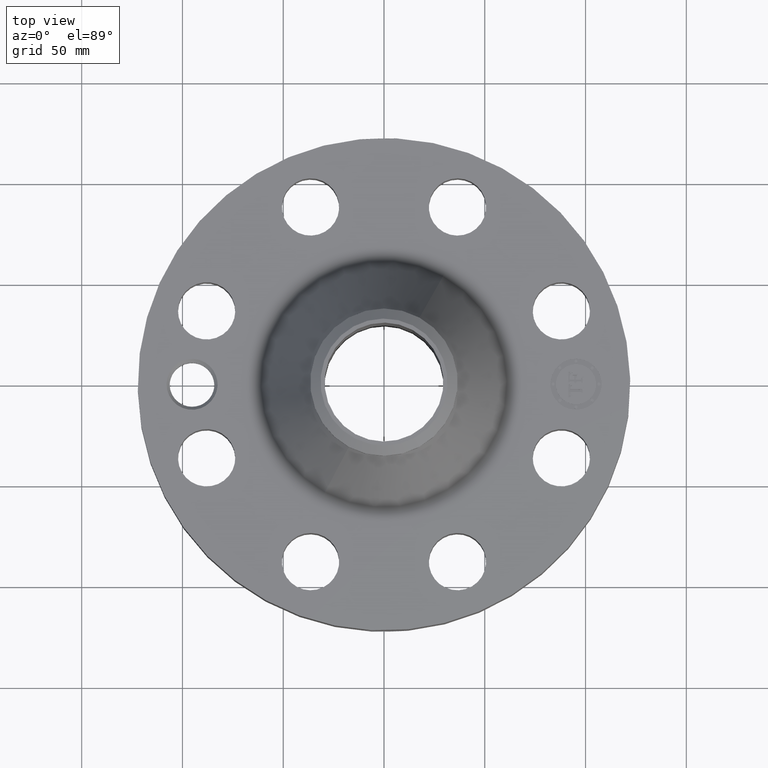
[diagram: clean part render]
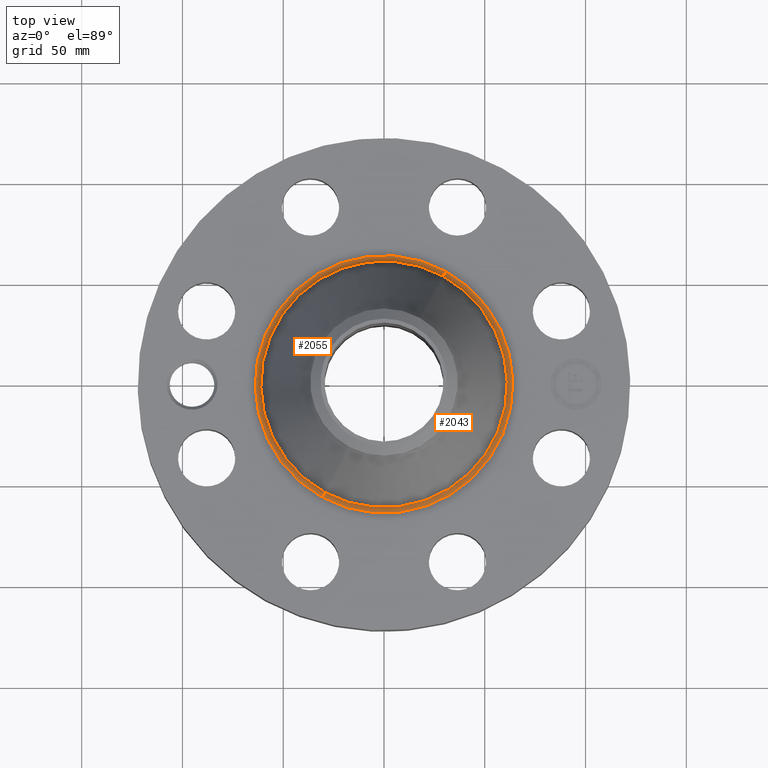
[diagram: same view with one multi-face feature highlighted, each face labeled with its STEP entity id]
A machine part, top view. The highlighted faces form ONE feature: a constant-radius fillet chain: 2 tangent blend faces with common blend radius 3.048 mm. The faces share edges in the B-rep.
Their STEP definitions:
[1] entity #2043 (Torus):
#602=AXIS2_PLACEMENT_3D('Circle Axis2P3D',#600,#601,$) ;
#2016=AXIS2_PLACEMENT_3D('Torus Axis2P3D',#2013,#2014,#2015) ;
#2020=AXIS2_PLACEMENT_3D('Circle Axis2P3D',#2018,#2019,$) ;
#2027=AXIS2_PLACEMENT_3D('Circle Axis2P3D',#2025,#2026,$) ;
#2034=AXIS2_PLACEMENT_3D('Circle Axis2P3D',#2032,#2033,$) ;
#595=CARTESIAN_POINT('Vertex',(-1.20620125242,-2.20793658248,1.87000000001)) ;
#597=CARTESIAN_POINT('Vertex',(1.20620125242,2.20793658248,1.87000000001)) ;
#600=CARTESIAN_POINT('Axis2P3D Location',(0.,0.,1.87000000001)) ;
#2013=CARTESIAN_POINT('Axis2P3D Location',(0.,0.,1.99000000001)) ;
#2018=CARTESIAN_POINT('Axis2P3D Location',(1.20620125242,2.20793658248,1.99000000001)) ;
#2022=CARTESIAN_POINT('Vertex',(1.15421101871,2.11276909801,1.93861745921)) ;
#2025=CARTESIAN_POINT('Axis2P3D Location',(0.,0.,1.93861745921)) ;
#2029=CARTESIAN_POINT('Vertex',(-1.15421101871,-2.11276909801,1.93861745921)) ;
#2032=CARTESIAN_POINT('Axis2P3D Location',(-1.20620125242,-2.20793658248,1.99000000001)) ;
#601=DIRECTION('Axis2P3D Direction',(0.,0.,-0.0393700787402)) ;
#2014=DIRECTION('Axis2P3D Direction',(0.,0.,-0.0393700787402)) ;
#2015=DIRECTION('Axis2P3D XDirection',(-0.0188750212049,-0.0345504945626,0.)) ;
#2019=DIRECTION('Axis2P3D Direction',(-0.0345504945626,0.0188750212049,0.)) ;
#2026=DIRECTION('Axis2P3D Direction',(0.,0.,-0.0393700787402)) ;
#2033=DIRECTION('Axis2P3D Direction',(0.0345504945626,-0.0188750212049,0.)) ;
#2038=ORIENTED_EDGE('',*,*,#604,.F.) ;
#2039=ORIENTED_EDGE('',*,*,#2024,.T.) ;
#2040=ORIENTED_EDGE('',*,*,#2031,.T.) ;
#2041=ORIENTED_EDGE('',*,*,#2036,.F.) ;
#2043=ADVANCED_FACE('PartBody',(#2042),#2017,.F.) ;
#603=CIRCLE('generated circle',#602,2.51593032765) ;
#2021=CIRCLE('generated circle',#2020,0.12) ;
#2028=CIRCLE('generated circle',#2027,2.40748755703) ;
#2035=CIRCLE('generated circle',#2034,0.12) ;
#2017=TOROIDAL_SURFACE('homeo Torus',#2016,2.51593032765,0.12) ;
#604=EDGE_CURVE('',#598,#596,#603,.T.) ;
#2024=EDGE_CURVE('',#598,#2023,#2021,.T.) ;
#2031=EDGE_CURVE('',#2023,#2030,#2028,.T.) ;
#2036=EDGE_CURVE('',#596,#2030,#2035,.T.) ;
#2037=EDGE_LOOP('',(#2038,#2039,#2040,#2041)) ;
#2042=FACE_OUTER_BOUND('',#2037,.T.) ;
#596=VERTEX_POINT('',#595) ;
#598=VERTEX_POINT('',#597) ;
#2023=VERTEX_POINT('',#2022) ;
#2030=VERTEX_POINT('',#2029) ;
[2] entity #2055 (Torus):
#593=AXIS2_PLACEMENT_3D('Circle Axis2P3D',#591,#592,$) ;
#2016=AXIS2_PLACEMENT_3D('Torus Axis2P3D',#2013,#2014,#2015) ;
#2020=AXIS2_PLACEMENT_3D('Circle Axis2P3D',#2018,#2019,$) ;
#2034=AXIS2_PLACEMENT_3D('Circle Axis2P3D',#2032,#2033,$) ;
#2046=AXIS2_PLACEMENT_3D('Circle Axis2P3D',#2044,#2045,$) ;
#591=CARTESIAN_POINT('Axis2P3D Location',(0.,0.,1.87000000001)) ;
#595=CARTESIAN_POINT('Vertex',(-1.20620125242,-2.20793658248,1.87000000001)) ;
#597=CARTESIAN_POINT('Vertex',(1.20620125242,2.20793658248,1.87000000001)) ;
#2013=CARTESIAN_POINT('Axis2P3D Location',(0.,0.,1.99000000001)) ;
#2018=CARTESIAN_POINT('Axis2P3D Location',(1.20620125242,2.20793658248,1.99000000001)) ;
#2022=CARTESIAN_POINT('Vertex',(1.15421101871,2.11276909801,1.93861745921)) ;
#2029=CARTESIAN_POINT('Vertex',(-1.15421101871,-2.11276909801,1.93861745921)) ;
#2032=CARTESIAN_POINT('Axis2P3D Location',(-1.20620125242,-2.20793658248,1.99000000001)) ;
#2044=CARTESIAN_POINT('Axis2P3D Location',(0.,0.,1.93861745921)) ;
#592=DIRECTION('Axis2P3D Direction',(0.,0.,-0.0393700787402)) ;
#2014=DIRECTION('Axis2P3D Direction',(0.,0.,-0.0393700787402)) ;
#2015=DIRECTION('Axis2P3D XDirection',(-0.0188750212049,-0.0345504945626,0.)) ;
#2019=DIRECTION('Axis2P3D Direction',(-0.0345504945626,0.0188750212049,0.)) ;
#2033=DIRECTION('Axis2P3D Direction',(0.0345504945626,-0.0188750212049,0.)) ;
#2045=DIRECTION('Axis2P3D Direction',(0.,0.,-0.0393700787402)) ;
#2050=ORIENTED_EDGE('',*,*,#599,.F.) ;
#2051=ORIENTED_EDGE('',*,*,#2036,.T.) ;
#2052=ORIENTED_EDGE('',*,*,#2048,.T.) ;
#2053=ORIENTED_EDGE('',*,*,#2024,.F.) ;
#2055=ADVANCED_FACE('PartBody',(#2054),#2017,.F.) ;
#594=CIRCLE('generated circle',#593,2.51593032765) ;
#2021=CIRCLE('generated circle',#2020,0.12) ;
#2035=CIRCLE('generated circle',#2034,0.12) ;
#2047=CIRCLE('generated circle',#2046,2.40748755703) ;
#2017=TOROIDAL_SURFACE('homeo Torus',#2016,2.51593032765,0.12) ;
#599=EDGE_CURVE('',#596,#598,#594,.T.) ;
#2024=EDGE_CURVE('',#598,#2023,#2021,.T.) ;
#2036=EDGE_CURVE('',#596,#2030,#2035,.T.) ;
#2048=EDGE_CURVE('',#2030,#2023,#2047,.T.) ;
#2049=EDGE_LOOP('',(#2050,#2051,#2052,#2053)) ;
#2054=FACE_OUTER_BOUND('',#2049,.T.) ;
#596=VERTEX_POINT('',#595) ;
#598=VERTEX_POINT('',#597) ;
#2023=VERTEX_POINT('',#2022) ;
#2030=VERTEX_POINT('',#2029) ;